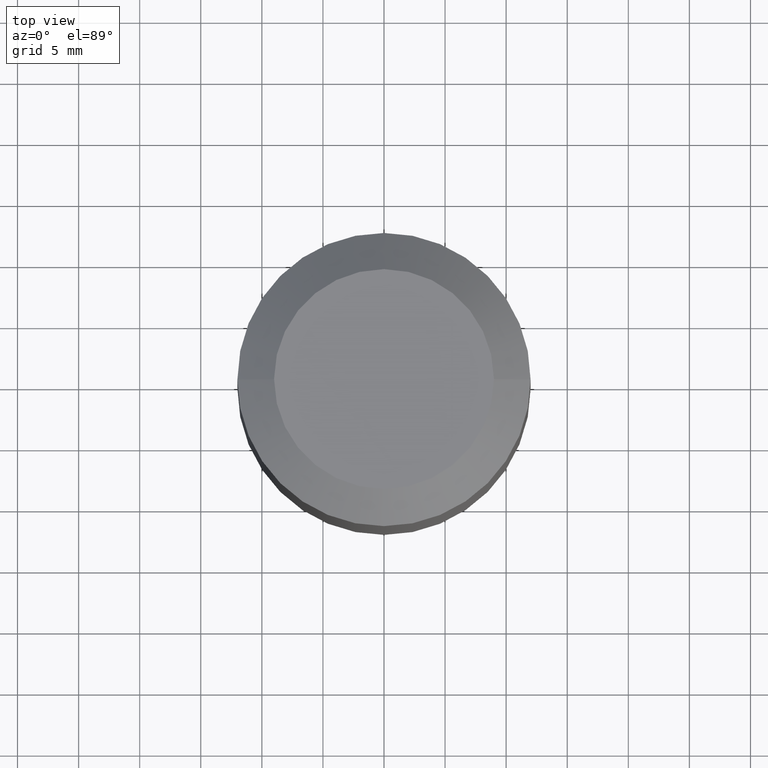
[diagram: clean part render]
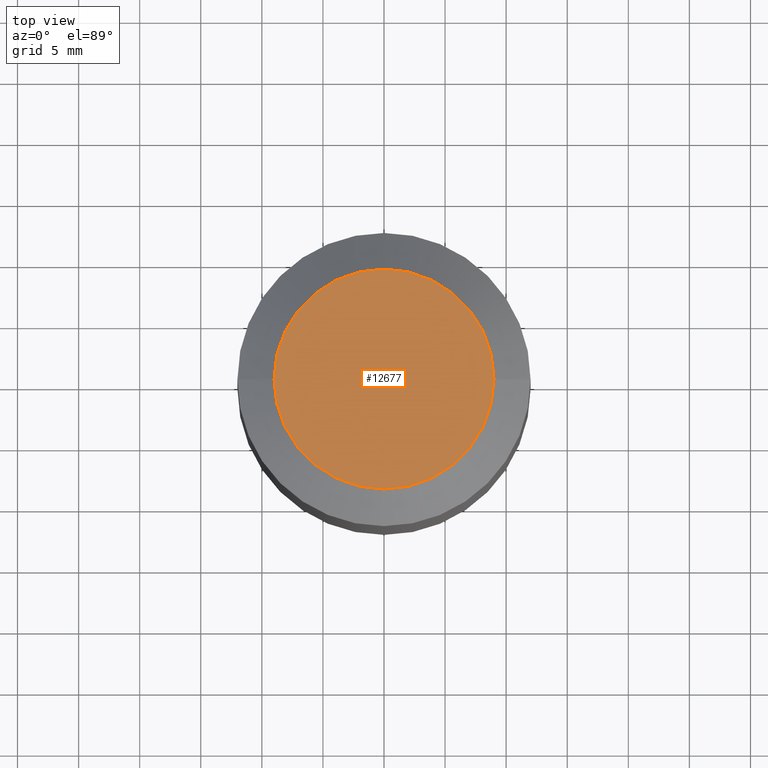
[diagram: same view with one face highlighted and labeled with its STEP entity id]
A machine part, top view. The second image highlights one B-rep face of the part: STEP entity #12677.
In plain terms, the highlighted planar face has unit normal (0, 0, 1).
Its self-contained STEP definition (entity closure, byte-faithful):
#525 = DIRECTION ( 'NONE',  ( 0.000000000000000000, 0.000000000000000000, 1.000000000000000000 ) ) ;
#2431 = DIRECTION ( 'NONE',  ( 1.000000000000000000, 0.000000000000000000, 0.000000000000000000 ) ) ;
#3764 = CIRCLE ( 'NONE', #19220, 9.000000000000000000 ) ;
#3773 = VERTEX_POINT ( 'NONE', #5329 ) ;
#4597 = VERTEX_POINT ( 'NONE', #17533 ) ;
#5329 = CARTESIAN_POINT ( 'NONE',  ( -9.000000000000000000, 0.000000000000000000, 49.29999999999999716 ) ) ;
#5835 = DIRECTION ( 'NONE',  ( 0.000000000000000000, 0.000000000000000000, 1.000000000000000000 ) ) ;
#6897 = EDGE_CURVE ( 'NONE', #3773, #4597, #3764, .T. ) ;
#7376 = DIRECTION ( 'NONE',  ( 1.000000000000000000, 0.000000000000000000, 0.000000000000000000 ) ) ;
#10571 = AXIS2_PLACEMENT_3D ( 'NONE', #22052, #525, #2431 ) ;
#12273 = ORIENTED_EDGE ( 'NONE', *, *, #6897, .T. ) ;
#12677 = ADVANCED_FACE ( 'NONE', ( #19876 ), #13904, .T. ) ;
#12828 = AXIS2_PLACEMENT_3D ( 'NONE', #20305, #19803, #24009 ) ;
#13904 = PLANE ( 'NONE',  #10571 ) ;
#17293 = CIRCLE ( 'NONE', #12828, 9.000000000000000000 ) ;
#17533 = CARTESIAN_POINT ( 'NONE',  ( 9.000000000000000000, 1.285879139104720633E-15, 49.29999999999999716 ) ) ;
#18461 = EDGE_LOOP ( 'NONE', ( #12273, #23417 ) ) ;
#19220 = AXIS2_PLACEMENT_3D ( 'NONE', #21244, #5835, #7376 ) ;
#19803 = DIRECTION ( 'NONE',  ( 0.000000000000000000, 0.000000000000000000, 1.000000000000000000 ) ) ;
#19876 = FACE_OUTER_BOUND ( 'NONE', #18461, .T. ) ;
#20305 = CARTESIAN_POINT ( 'NONE',  ( 0.000000000000000000, 0.000000000000000000, 49.29999999999999716 ) ) ;
#21048 = EDGE_CURVE ( 'NONE', #4597, #3773, #17293, .T. ) ;
#21244 = CARTESIAN_POINT ( 'NONE',  ( 0.000000000000000000, 0.000000000000000000, 49.29999999999999716 ) ) ;
#22052 = CARTESIAN_POINT ( 'NONE',  ( 0.000000000000000000, 0.000000000000000000, 49.29999999999999716 ) ) ;
#23417 = ORIENTED_EDGE ( 'NONE', *, *, #21048, .T. ) ;
#24009 = DIRECTION ( 'NONE',  ( 1.000000000000000000, 0.000000000000000000, 0.000000000000000000 ) ) ;